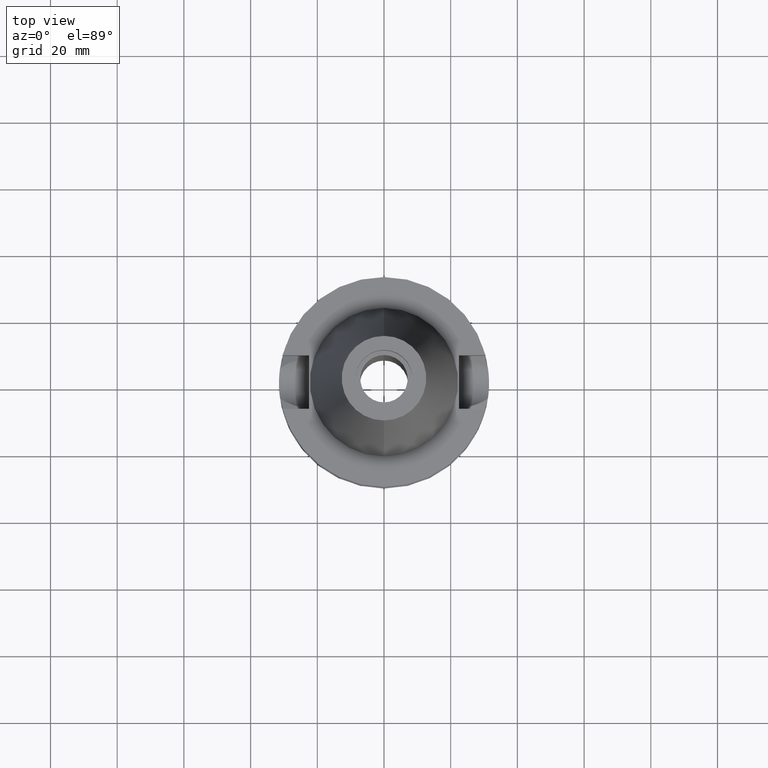
[diagram: clean part render]
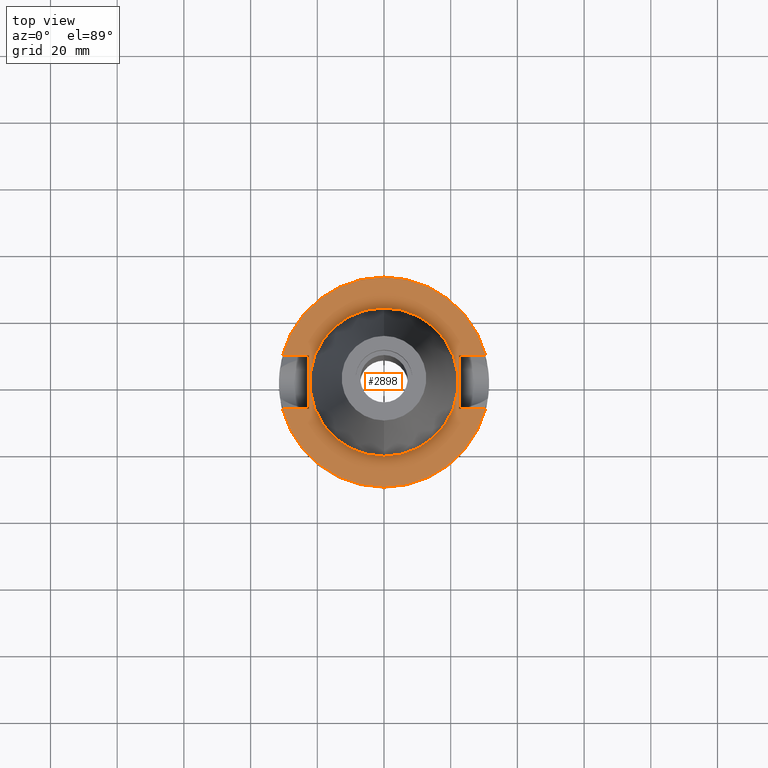
[diagram: same view with one face highlighted and labeled with its STEP entity id]
A machine part, top view. The second image highlights one B-rep face of the part: STEP entity #2898.
In plain terms, the highlighted planar face has unit normal (0, 0, -1).
Its self-contained STEP definition (entity closure, byte-faithful):
#94=DIRECTION('',(0.E0,1.E0,0.E0));
#95=VECTOR('',#94,1.61E1);
#96=CARTESIAN_POINT('',(-2.25E1,-8.05E0,-2.E0));
#97=LINE('',#96,#95);
#101=DIRECTION('',(-1.E0,-3.550916904668E-14,0.E0));
#102=VECTOR('',#101,7.954022722788E0);
#103=CARTESIAN_POINT('',(-2.25E1,8.05E0,-2.E0));
#104=LINE('',#103,#102);
#108=CARTESIAN_POINT('',(0.E0,2.148275415064E-14,-2.E0));
#109=DIRECTION('',(0.E0,0.E0,-1.E0));
#110=DIRECTION('',(-9.667943721520E-1,2.555555555556E-1,0.E0));
#111=AXIS2_PLACEMENT_3D('',#108,#109,#110);
#116=CARTESIAN_POINT('',(0.E0,2.148275415064E-14,-2.E0));
#117=DIRECTION('',(0.E0,0.E0,-1.E0));
#118=DIRECTION('',(0.E0,1.E0,0.E0));
#119=AXIS2_PLACEMENT_3D('',#116,#117,#118);
#124=DIRECTION('',(0.E0,-1.E0,0.E0));
#125=VECTOR('',#124,1.61E1);
#126=CARTESIAN_POINT('',(2.25E1,8.05E0,-2.E0));
#127=LINE('',#126,#125);
#131=DIRECTION('',(1.E0,3.573249715390E-14,0.E0));
#132=VECTOR('',#131,7.954022722788E0);
#133=CARTESIAN_POINT('',(2.25E1,-8.05E0,-2.E0));
#134=LINE('',#133,#132);
#138=CARTESIAN_POINT('',(0.E0,2.148275415064E-14,-2.E0));
#139=DIRECTION('',(0.E0,0.E0,-1.E0));
#140=DIRECTION('',(9.667943721520E-1,-2.555555555556E-1,0.E0));
#141=AXIS2_PLACEMENT_3D('',#138,#139,#140);
#146=CARTESIAN_POINT('',(0.E0,2.148275415064E-14,-2.E0));
#147=DIRECTION('',(0.E0,0.E0,-1.E0));
#148=DIRECTION('',(0.E0,-1.E0,0.E0));
#149=AXIS2_PLACEMENT_3D('',#146,#147,#148);
#154=CARTESIAN_POINT('',(0.E0,2.148275415064E-14,-2.E0));
#155=DIRECTION('',(0.E0,0.E0,1.E0));
#156=DIRECTION('',(0.E0,-1.E0,0.E0));
#157=AXIS2_PLACEMENT_3D('',#154,#155,#156);
#162=CARTESIAN_POINT('',(0.E0,2.148275415064E-14,-2.E0));
#163=DIRECTION('',(0.E0,0.E0,1.E0));
#164=DIRECTION('',(0.E0,1.E0,0.E0));
#165=AXIS2_PLACEMENT_3D('',#162,#163,#164);
#200=DIRECTION('',(-1.E0,3.550916904668E-14,0.E0));
#201=VECTOR('',#200,7.954022722788E0);
#202=CARTESIAN_POINT('',(-2.25E1,-8.05E0,-2.E0));
#203=LINE('',#202,#201);
#337=DIRECTION('',(1.E0,-3.506251283226E-14,0.E0));
#338=VECTOR('',#337,7.954022722788E0);
#339=CARTESIAN_POINT('',(2.25E1,8.05E0,-2.E0));
#340=LINE('',#339,#338);
#2689=CARTESIAN_POINT('',(-2.25E1,-8.05E0,-2.E0));
#2690=VERTEX_POINT('',#2689);
#2691=CARTESIAN_POINT('',(-3.045402272279E1,-8.05E0,-2.E0));
#2692=VERTEX_POINT('',#2691);
#2695=CARTESIAN_POINT('',(-2.25E1,8.05E0,-2.E0));
#2696=VERTEX_POINT('',#2695);
#2697=CARTESIAN_POINT('',(-3.045402272279E1,8.05E0,-2.E0));
#2698=VERTEX_POINT('',#2697);
#2699=CARTESIAN_POINT('',(-3.046064939756E-14,3.15E1,-2.E0));
#2700=CARTESIAN_POINT('',(3.045402272279E1,8.05E0,-2.E0));
#2701=VERTEX_POINT('',#2699);
#2702=VERTEX_POINT('',#2700);
#2703=CARTESIAN_POINT('',(2.25E1,8.05E0,-2.E0));
#2704=VERTEX_POINT('',#2703);
#2705=CARTESIAN_POINT('',(2.25E1,-8.05E0,-2.E0));
#2706=VERTEX_POINT('',#2705);
#2707=CARTESIAN_POINT('',(3.045402272279E1,-8.05E0,-2.E0));
#2708=VERTEX_POINT('',#2707);
#2709=CARTESIAN_POINT('',(3.046064939756E-14,-3.15E1,-2.E0));
#2710=VERTEX_POINT('',#2709);
#2711=CARTESIAN_POINT('',(0.E0,-2.2225E1,-2.E0));
#2712=CARTESIAN_POINT('',(0.E0,2.2225E1,-2.E0));
#2713=VERTEX_POINT('',#2711);
#2714=VERTEX_POINT('',#2712);
#2867=CARTESIAN_POINT('',(0.E0,1.200153863164E-14,-2.E0));
#2868=DIRECTION('',(0.E0,0.E0,-1.E0));
#2869=DIRECTION('',(0.E0,-1.E0,0.E0));
#2870=AXIS2_PLACEMENT_3D('',#2867,#2868,#2869);
#2871=PLANE('',#2870);
#2873=ORIENTED_EDGE('',*,*,#2872,.T.);
#2875=ORIENTED_EDGE('',*,*,#2874,.T.);
#2877=ORIENTED_EDGE('',*,*,#2876,.T.);
#2879=ORIENTED_EDGE('',*,*,#2878,.T.);
#2881=ORIENTED_EDGE('',*,*,#2880,.F.);
#2883=ORIENTED_EDGE('',*,*,#2882,.T.);
#2885=ORIENTED_EDGE('',*,*,#2884,.T.);
#2887=ORIENTED_EDGE('',*,*,#2886,.T.);
#2889=ORIENTED_EDGE('',*,*,#2888,.T.);
#2891=ORIENTED_EDGE('',*,*,#2890,.F.);
#2892=EDGE_LOOP('',(#2873,#2875,#2877,#2879,#2881,#2883,#2885,#2887,#2889,
#2891));
#2893=FACE_OUTER_BOUND('',#2892,.F.);
#2894=ORIENTED_EDGE('',*,*,#2846,.T.);
#2895=ORIENTED_EDGE('',*,*,#2862,.T.);
#2896=EDGE_LOOP('',(#2894,#2895));
#2897=FACE_BOUND('',#2896,.F.);
#112=CIRCLE('',#111,3.15E1);
#120=CIRCLE('',#119,3.15E1);
#142=CIRCLE('',#141,3.15E1);
#150=CIRCLE('',#149,3.15E1);
#158=CIRCLE('',#157,2.2225E1);
#166=CIRCLE('',#165,2.2225E1);
#2846=EDGE_CURVE('',#2713,#2714,#158,.T.);
#2862=EDGE_CURVE('',#2714,#2713,#166,.T.);
#2872=EDGE_CURVE('',#2690,#2696,#97,.T.);
#2874=EDGE_CURVE('',#2696,#2698,#104,.T.);
#2876=EDGE_CURVE('',#2698,#2701,#112,.T.);
#2878=EDGE_CURVE('',#2701,#2702,#120,.T.);
#2880=EDGE_CURVE('',#2704,#2702,#340,.T.);
#2882=EDGE_CURVE('',#2704,#2706,#127,.T.);
#2884=EDGE_CURVE('',#2706,#2708,#134,.T.);
#2886=EDGE_CURVE('',#2708,#2710,#142,.T.);
#2888=EDGE_CURVE('',#2710,#2692,#150,.T.);
#2890=EDGE_CURVE('',#2690,#2692,#203,.T.);
#2898=ADVANCED_FACE('',(#2893,#2897),#2871,.F.);